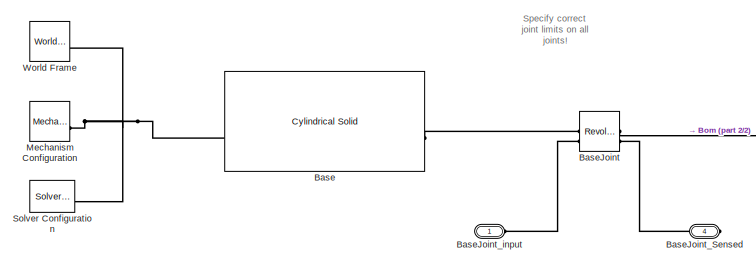
[diagram: root canvas - part 1/2, left side, full height]
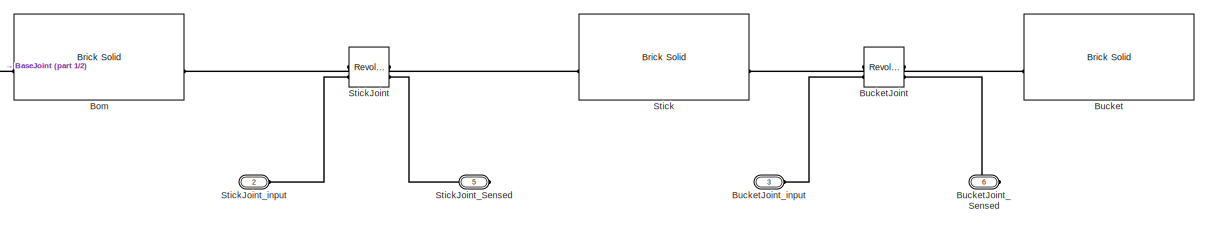
[diagram: root canvas - part 2/2, middle right region]
MODEL slx_a463056d5d33
KIND model
CONFIG AbsTol = auto
CONFIG EnableMultiTasking = off
CONFIG FixedStep = auto
CONFIG MaxStep = auto
CONFIG MinStep = auto
CONFIG RelTol = 1e-3
CONFIG SampleTimeConstraint = Unconstrained
CONFIG SolverName = VariableStepAuto
CONFIG StartTime = 0.0
CONFIG StopTime = 10.0
BLOCK [Reference] Base  REF=sm_lib/Body Elements/Cylindrical Solid
  SourceBlock = sm_lib/Body Elements/Cylindrical Solid
  SourceType = Cylindrical Solid
BLOCK [Reference] BaseJoint  REF=sm_lib/Joints/Revolute Joint
  SourceBlock = sm_lib/Joints/Revolute Joint
  SourceType = Revolute Joint
BLOCK [PMIOPort] BaseJoint_Sensed
  Port = 4
  Side = Right
BLOCK [PMIOPort] BaseJoint_input
  Side = Left
BLOCK [Reference] Bom  REF=sm_lib/Body Elements/Brick Solid
  SourceBlock = sm_lib/Body Elements/Brick Solid
  SourceType = Brick Solid
BLOCK [Reference] Bucket  REF=sm_lib/Body Elements/Brick Solid
  SourceBlock = sm_lib/Body Elements/Brick Solid
  SourceType = Brick Solid
BLOCK [Reference] BucketJoint  REF=sm_lib/Joints/Revolute Joint
  SourceBlock = sm_lib/Joints/Revolute Joint
  SourceType = Revolute Joint
BLOCK [PMIOPort] BucketJoint_Sensed
  Port = 6
  Side = Right
BLOCK [PMIOPort] BucketJoint_input
  Port = 3
  Side = Left
BLOCK [Reference] Mechanism Configuration  REF=sm_lib/Utilities/Mechanism
Configuration
  SourceBlock = sm_lib/Utilities/Mechanism\nConfiguration
  SourceType = Mechanism\nConfiguration
BLOCK [Reference] Solver Configuration  REF=nesl_utility/Solver
Configuration
  SourceBlock = nesl_utility/Solver\nConfiguration
  SourceType = Solver\nConfiguration
BLOCK [Reference] Stick  REF=sm_lib/Body Elements/Brick Solid
  SourceBlock = sm_lib/Body Elements/Brick Solid
  SourceType = Brick Solid
BLOCK [Reference] StickJoint  REF=sm_lib/Joints/Revolute Joint
  SourceBlock = sm_lib/Joints/Revolute Joint
  SourceType = Revolute Joint
BLOCK [PMIOPort] StickJoint_Sensed
  Port = 5
  Side = Right
BLOCK [PMIOPort] StickJoint_input
  Port = 2
  Side = Left
BLOCK [Reference] World Frame  REF=sm_lib/Frames and
Transforms/World Frame
  SourceBlock = sm_lib/Frames and\nTransforms/World Frame
  SourceType = World Frame
ANNOTATION (root): Specify correct joint limits on all joints!
PNET net1: Base:LConn1 -- Mechanism Configuration:RConn1 -- Solver Configuration:RConn1 -- World Frame:RConn1
PLINE Base:RConn1 -- BaseJoint:LConn1
PLINE BaseJoint:LConn2 -- BaseJoint_input:RConn1
PLINE BaseJoint:RConn1 -- Bom:LConn1
PLINE BaseJoint:RConn2 -- BaseJoint_Sensed:RConn1
PLINE Bom:RConn1 -- StickJoint:LConn1
PLINE Bucket:LConn1 -- BucketJoint:RConn1
PLINE BucketJoint:LConn1 -- Stick:RConn1
PLINE BucketJoint:LConn2 -- BucketJoint_input:RConn1
PLINE BucketJoint:RConn2 -- BucketJoint_Sensed:RConn1
PLINE Stick:LConn1 -- StickJoint:RConn1
PLINE StickJoint:LConn2 -- StickJoint_input:RConn1
PLINE StickJoint:RConn2 -- StickJoint_Sensed:RConn1
note: PNET lines group multi-terminal physical nets as a canonical sorted terminal list (undirected conserving connections); 2-terminal nets keep the pairwise PLINE form
